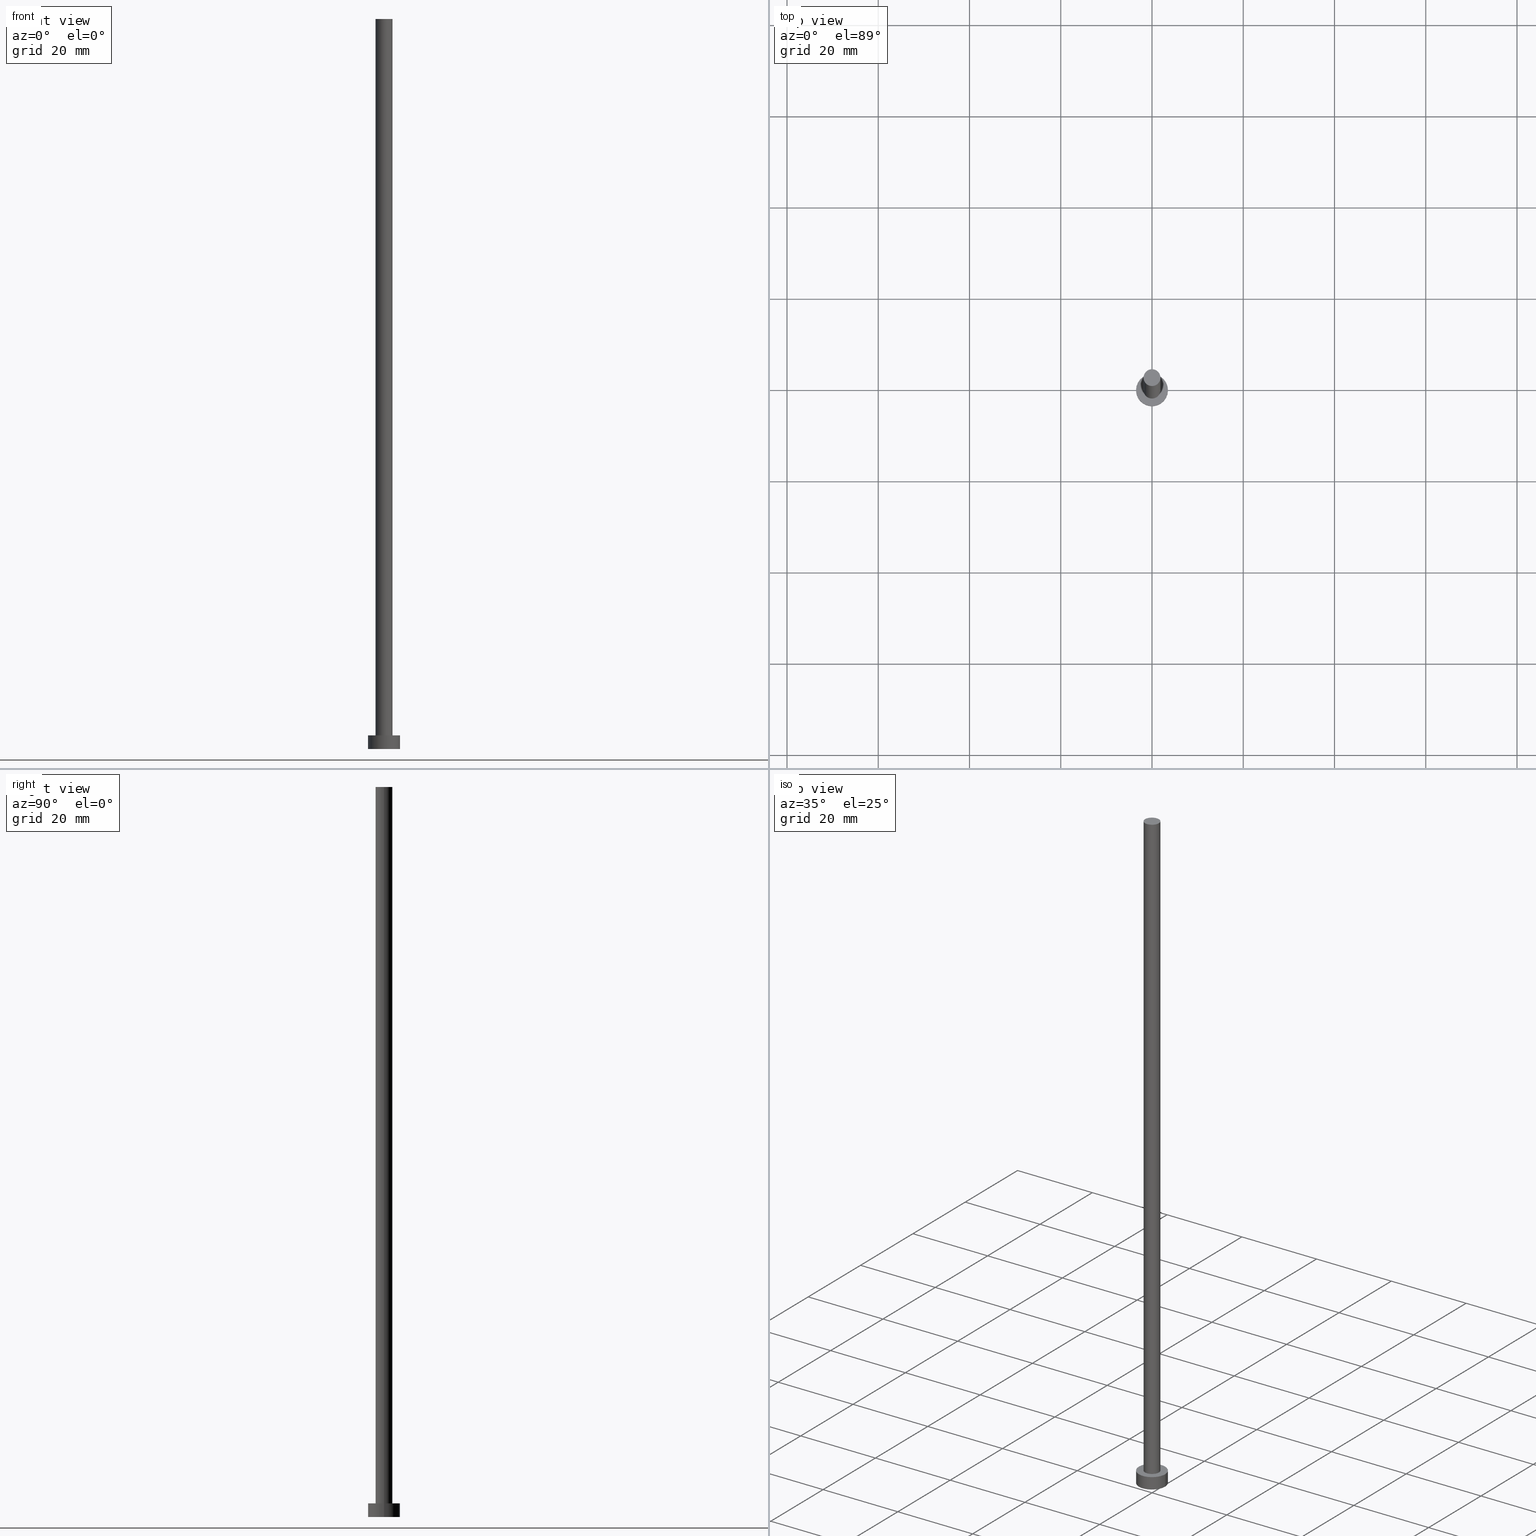
[diagram: canonical four-view strip — front | top / right | iso, engineering-drawing reading convention]
A machine part, canonical four-view strip (front | top / right | iso — engineering-drawing reading convention). The complete STEP part file that produces these views, byte-faithful:
ISO-10303-21;
HEADER;
FILE_DESCRIPTION (( 'STEP AP203' ),
    '1' );
FILE_NAME ('f652.STEP',
    '2026-02-11T15:51:10',
    ( '' ),
    ( '' ),
    'SwSTEP 2.0',
    'SolidWorks 2019',
    '' );
FILE_SCHEMA (( 'CONFIG_CONTROL_DESIGN' ));
ENDSEC;

DATA;
#1 = VECTOR ( 'NONE', #9, 1000.000000000000000 ) ;
#2 = EDGE_CURVE ( 'NONE', #203, #167, #132, .T. ) ;
#3 = APPROVAL_STATUS ( 'not_yet_approved' ) ;
#4 = DIRECTION ( 'NONE',  ( 0.000000000000000000, 0.000000000000000000, 1.000000000000000000 ) ) ;
#5 = CARTESIAN_POINT ( 'NONE',  ( 0.000000000000000000, 0.000000000000000000, 3.000000000000000000 ) ) ;
#6 = PERSON_AND_ORGANIZATION_ROLE ( 'design_supplier' ) ;
#7 = CARTESIAN_POINT ( 'NONE',  ( 3.500000000000000444, 4.286263797015737088E-16, 0.000000000000000000 ) ) ;
#8 = AXIS2_PLACEMENT_3D ( 'NONE', #175, #105, #83 ) ;
#9 = DIRECTION ( 'NONE',  ( -0.000000000000000000, -0.000000000000000000, -1.000000000000000000 ) ) ;
#10 = UNCERTAINTY_MEASURE_WITH_UNIT (LENGTH_MEASURE( 1.000000000000000082E-05 ), #128, 'distance_accuracy_value', 'NONE');
#11 = APPROVAL_DATE_TIME ( #146, #33 ) ;
#12 = LINE ( 'NONE', #159, #1 ) ;
#13 = DIRECTION ( 'NONE',  ( 0.000000000000000000, 0.000000000000000000, 1.000000000000000000 ) ) ;
#14 = CC_DESIGN_APPROVAL ( #131, ( #190 ) ) ;
#15 = ORIENTED_EDGE ( 'NONE', *, *, #118, .T. ) ;
#16 = CC_DESIGN_PERSON_AND_ORGANIZATION_ASSIGNMENT ( #205, #234, ( #212 ) ) ;
#17 = ORIENTED_EDGE ( 'NONE', *, *, #19, .F. ) ;
#18 = CARTESIAN_POINT ( 'NONE',  ( 0.000000000000000000, 0.000000000000000000, 3.000000000000000000 ) ) ;
#19 = EDGE_CURVE ( 'NONE', #48, #199, #144, .T. ) ;
#20 = LOCAL_TIME ( 16, 51, 10.00000000000000000, #47 ) ;
#21 = VERTEX_POINT ( 'NONE', #160 ) ;
#22 = DIRECTION ( 'NONE',  ( 0.000000000000000000, 0.000000000000000000, 1.000000000000000000 ) ) ;
#23 = DIRECTION ( 'NONE',  ( 1.000000000000000000, 0.000000000000000000, 0.000000000000000000 ) ) ;
#24 = DIRECTION ( 'NONE',  ( 0.000000000000000000, 0.000000000000000000, 1.000000000000000000 ) ) ;
#25 = DIRECTION ( 'NONE',  ( 1.000000000000000000, 0.000000000000000000, 0.000000000000000000 ) ) ;
#26 = MANIFOLD_SOLID_BREP ( 'P�idat vysunut�m3', #113 ) ;
#27 = CALENDAR_DATE ( 2026, 11, 2 ) ;
#28 = COORDINATED_UNIVERSAL_TIME_OFFSET ( 1, 0, .AHEAD. ) ;
#29 = CARTESIAN_POINT ( 'NONE',  ( 3.500000000000000444, 4.286263797015737088E-16, 3.000000000000000000 ) ) ;
#30 = CARTESIAN_POINT ( 'NONE',  ( 0.000000000000000000, 0.000000000000000000, 0.000000000000000000 ) ) ;
#31 =( NAMED_UNIT ( * ) PLANE_ANGLE_UNIT ( ) SI_UNIT ( $, .RADIAN. ) );
#32 = PERSON_AND_ORGANIZATION ( #169, #173 ) ;
#33 = APPROVAL ( #3, 'NEUR�EN�' ) ;
#34 = ORIENTED_EDGE ( 'NONE', *, *, #19, .T. ) ;
#35 = LOCAL_TIME ( 16, 51, 10.00000000000000000, #252 ) ;
#36 = ORIENTED_EDGE ( 'NONE', *, *, #88, .F. ) ;
#37 = FACE_OUTER_BOUND ( 'NONE', #91, .T. ) ;
#38 = CARTESIAN_POINT ( 'NONE',  ( -3.500000000000000444, 0.000000000000000000, 0.000000000000000000 ) ) ;
#39 = CIRCLE ( 'NONE', #183, 1.850000000000000089 ) ;
#40 = APPROVAL_PERSON_ORGANIZATION ( #171, #98, #109 ) ;
#41 = ORIENTED_EDGE ( 'NONE', *, *, #2, .T. ) ;
#42 = ORIENTED_EDGE ( 'NONE', *, *, #139, .F. ) ;
#43 = FACE_OUTER_BOUND ( 'NONE', #124, .T. ) ;
#44 = CIRCLE ( 'NONE', #243, 3.500000000000000444 ) ;
#45 = DESIGN_CONTEXT ( 'detailed design', #156, 'design' ) ;
#46 = PERSON_AND_ORGANIZATION_ROLE ( 'creator' ) ;
#47 = COORDINATED_UNIVERSAL_TIME_OFFSET ( 1, 0, .AHEAD. ) ;
#48 = VERTEX_POINT ( 'NONE', #242 ) ;
#49 = DIRECTION ( 'NONE',  ( -1.000000000000000000, 0.000000000000000000, 0.000000000000000000 ) ) ;
#50 = CARTESIAN_POINT ( 'NONE',  ( 0.000000000000000000, 0.000000000000000000, 3.000000000000000000 ) ) ;
#51 =( GEOMETRIC_REPRESENTATION_CONTEXT ( 3 ) GLOBAL_UNCERTAINTY_ASSIGNED_CONTEXT ( ( #10 ) ) GLOBAL_UNIT_ASSIGNED_CONTEXT ( ( #128, #31, #233 ) ) REPRESENTATION_CONTEXT ( 'NONE', 'WORKASPACE' ) );
#52 = DIRECTION ( 'NONE',  ( -0.000000000000000000, -0.000000000000000000, -1.000000000000000000 ) ) ;
#53 = ORIENTED_EDGE ( 'NONE', *, *, #176, .F. ) ;
#54 = AXIS2_PLACEMENT_3D ( 'NONE', #103, #4, #100 ) ;
#55 = EDGE_LOOP ( 'NONE', ( #216, #79 ) ) ;
#56 = DIRECTION ( 'NONE',  ( 1.000000000000000000, 0.000000000000000000, 0.000000000000000000 ) ) ;
#57 = ORIENTED_EDGE ( 'NONE', *, *, #157, .F. ) ;
#58 = CARTESIAN_POINT ( 'NONE',  ( 3.500000000000000444, 4.286263797015737088E-16, 3.000000000000000000 ) ) ;
#59 = AXIS2_PLACEMENT_3D ( 'NONE', #238, #155, #80 ) ;
#60 = CARTESIAN_POINT ( 'NONE',  ( 0.000000000000000000, 0.000000000000000000, 3.000000000000000000 ) ) ;
#61 = PERSON_AND_ORGANIZATION ( #169, #173 ) ;
#62 = CC_DESIGN_APPROVAL ( #98, ( #78 ) ) ;
#63 = DIRECTION ( 'NONE',  ( 0.000000000000000000, 0.000000000000000000, 1.000000000000000000 ) ) ;
#64 = PERSON_AND_ORGANIZATION ( #169, #173 ) ;
#65 = CARTESIAN_POINT ( 'NONE',  ( -1.850000000000000089, 0.000000000000000000, 160.0000000000000000 ) ) ;
#66 = APPLICATION_PROTOCOL_DEFINITION ( 'international standard', 'config_control_design', 1994, #156 ) ;
#67 = CIRCLE ( 'NONE', #152, 3.500000000000000444 ) ;
#68 = AXIS2_PLACEMENT_3D ( 'NONE', #60, #22, #255 ) ;
#69 = LOCAL_TIME ( 16, 51, 10.00000000000000000, #164 ) ;
#70 = ORIENTED_EDGE ( 'NONE', *, *, #176, .T. ) ;
#71 = APPROVAL_PERSON_ORGANIZATION ( #247, #33, #120 ) ;
#72 = FACE_BOUND ( 'NONE', #143, .T. ) ;
#73 = SHAPE_DEFINITION_REPRESENTATION ( #195, #125 ) ;
#74 = CARTESIAN_POINT ( 'NONE',  ( -3.500000000000000444, 0.000000000000000000, 3.000000000000000000 ) ) ;
#75 = DIRECTION ( 'NONE',  ( -0.000000000000000000, -0.000000000000000000, -1.000000000000000000 ) ) ;
#76 = CARTESIAN_POINT ( 'NONE',  ( 0.000000000000000000, 0.000000000000000000, 0.000000000000000000 ) ) ;
#77 = CYLINDRICAL_SURFACE ( 'NONE', #59, 1.850000000000000089 ) ;
#78 = SECURITY_CLASSIFICATION ( '', '', #239 ) ;
#79 = ORIENTED_EDGE ( 'NONE', *, *, #118, .F. ) ;
#80 = DIRECTION ( 'NONE',  ( -1.000000000000000000, 0.000000000000000000, 0.000000000000000000 ) ) ;
#81 = ORIENTED_EDGE ( 'NONE', *, *, #250, .F. ) ;
#82 = FACE_OUTER_BOUND ( 'NONE', #178, .T. ) ;
#83 = DIRECTION ( 'NONE',  ( 1.000000000000000000, 0.000000000000000000, 0.000000000000000000 ) ) ;
#84 = DIRECTION ( 'NONE',  ( 1.000000000000000000, 0.000000000000000000, 0.000000000000000000 ) ) ;
#85 = EDGE_CURVE ( 'NONE', #198, #89, #44, .T. ) ;
#86 = DIRECTION ( 'NONE',  ( 1.000000000000000000, 0.000000000000000000, -0.000000000000000000 ) ) ;
#87 = CC_DESIGN_PERSON_AND_ORGANIZATION_ASSIGNMENT ( #187, #227, ( #191 ) ) ;
#88 = EDGE_CURVE ( 'NONE', #203, #89, #228, .T. ) ;
#89 = VERTEX_POINT ( 'NONE', #7 ) ;
#90 = VECTOR ( 'NONE', #181, 1000.000000000000000 ) ;
#91 = EDGE_LOOP ( 'NONE', ( #36, #230, #116, #224 ) ) ;
#92 = ADVANCED_FACE ( 'NONE', ( #248 ), #108, .T. ) ;
#93 = CALENDAR_DATE ( 2026, 11, 2 ) ;
#94 = ORIENTED_EDGE ( 'NONE', *, *, #192, .T. ) ;
#95 = AXIS2_PLACEMENT_3D ( 'NONE', #189, #13, #184 ) ;
#96 = APPLICATION_CONTEXT ( 'configuration controlled 3d designs of mechanical parts and assemblies' ) ;
#97 = PERSON_AND_ORGANIZATION_ROLE ( 'classification_officer' ) ;
#98 = APPROVAL ( #133, 'NEUR�EN�' ) ;
#99 = CC_DESIGN_PERSON_AND_ORGANIZATION_ASSIGNMENT ( #32, #97, ( #78 ) ) ;
#100 = DIRECTION ( 'NONE',  ( 1.000000000000000000, 0.000000000000000000, 0.000000000000000000 ) ) ;
#101 = FACE_OUTER_BOUND ( 'NONE', #136, .T. ) ;
#102 = CIRCLE ( 'NONE', #150, 3.500000000000000444 ) ;
#103 = CARTESIAN_POINT ( 'NONE',  ( 0.000000000000000000, 0.000000000000000000, 3.000000000000000000 ) ) ;
#104 = DIRECTION ( 'NONE',  ( 0.000000000000000000, 0.000000000000000000, 1.000000000000000000 ) ) ;
#105 = DIRECTION ( 'NONE',  ( 0.000000000000000000, 0.000000000000000000, 1.000000000000000000 ) ) ;
#106 = DIRECTION ( 'NONE',  ( 1.000000000000000000, 0.000000000000000000, 0.000000000000000000 ) ) ;
#107 = DIRECTION ( 'NONE',  ( 0.000000000000000000, 0.000000000000000000, 1.000000000000000000 ) ) ;
#108 = CYLINDRICAL_SURFACE ( 'NONE', #110, 1.850000000000000089 ) ;
#109 = APPROVAL_ROLE ( '' ) ;
#110 = AXIS2_PLACEMENT_3D ( 'NONE', #153, #52, #179 ) ;
#111 = ORIENTED_EDGE ( 'NONE', *, *, #139, .T. ) ;
#112 = ADVANCED_FACE ( 'NONE', ( #82 ), #244, .T. ) ;
#113 = CLOSED_SHELL ( 'NONE', ( #92, #112, #165, #207, #149, #208, #236 ) ) ;
#114 = CIRCLE ( 'NONE', #197, 1.850000000000000089 ) ;
#115 = EDGE_LOOP ( 'NONE', ( #42, #53, #130, #194 ) ) ;
#116 = ORIENTED_EDGE ( 'NONE', *, *, #188, .T. ) ;
#117 = LINE ( 'NONE', #237, #127 ) ;
#118 = EDGE_CURVE ( 'NONE', #89, #198, #67, .T. ) ;
#119 = PLANE ( 'NONE',  #185 ) ;
#120 = APPROVAL_ROLE ( '' ) ;
#121 = DIRECTION ( 'NONE',  ( 1.000000000000000000, 0.000000000000000000, -0.000000000000000000 ) ) ;
#122 = MECHANICAL_CONTEXT ( 'NONE', #96, 'mechanical' ) ;
#123 = EDGE_CURVE ( 'NONE', #21, #215, #39, .T. ) ;
#124 = EDGE_LOOP ( 'NONE', ( #70, #134 ) ) ;
#125 = ADVANCED_BREP_SHAPE_REPRESENTATION ( 'f652', ( #26, #95 ), #51 ) ;
#126 = CC_DESIGN_PERSON_AND_ORGANIZATION_ASSIGNMENT ( #202, #6, ( #191 ) ) ;
#127 = VECTOR ( 'NONE', #251, 1000.000000000000000 ) ;
#128 =( LENGTH_UNIT ( ) NAMED_UNIT ( * ) SI_UNIT ( .MILLI., .METRE. ) );
#129 = COORDINATED_UNIVERSAL_TIME_OFFSET ( 1, 0, .AHEAD. ) ;
#130 = ORIENTED_EDGE ( 'NONE', *, *, #157, .T. ) ;
#131 = APPROVAL ( #206, 'NEUR�EN�' ) ;
#132 = CIRCLE ( 'NONE', #54, 3.500000000000000444 ) ;
#133 = APPROVAL_STATUS ( 'not_yet_approved' ) ;
#134 = ORIENTED_EDGE ( 'NONE', *, *, #123, .T. ) ;
#135 = DIRECTION ( 'NONE',  ( -1.000000000000000000, 0.000000000000000000, 0.000000000000000000 ) ) ;
#136 = EDGE_LOOP ( 'NONE', ( #94, #41 ) ) ;
#137 = CIRCLE ( 'NONE', #214, 1.850000000000000089 ) ;
#138 = CYLINDRICAL_SURFACE ( 'NONE', #213, 3.500000000000000444 ) ;
#139 = EDGE_CURVE ( 'NONE', #21, #48, #12, .T. ) ;
#140 = ORIENTED_EDGE ( 'NONE', *, *, #123, .F. ) ;
#141 = PLANE ( 'NONE',  #68 ) ;
#142 = CC_DESIGN_DATE_AND_TIME_ASSIGNMENT ( #232, #225, ( #190 ) ) ;
#143 = EDGE_LOOP ( 'NONE', ( #81, #17 ) ) ;
#144 = CIRCLE ( 'NONE', #8, 1.850000000000000089 ) ;
#145 = APPROVAL_PERSON_ORGANIZATION ( #61, #131, #186 ) ;
#146 = DATE_AND_TIME ( #27, #161 ) ;
#147 = DATE_AND_TIME ( #241, #69 ) ;
#148 = DIRECTION ( 'NONE',  ( 0.000000000000000000, 0.000000000000000000, 1.000000000000000000 ) ) ;
#149 = ADVANCED_FACE ( 'NONE', ( #240 ), #246, .F. ) ;
#150 = AXIS2_PLACEMENT_3D ( 'NONE', #254, #24, #56 ) ;
#151 = CALENDAR_DATE ( 2026, 11, 2 ) ;
#152 = AXIS2_PLACEMENT_3D ( 'NONE', #30, #226, #106 ) ;
#153 = CARTESIAN_POINT ( 'NONE',  ( 0.000000000000000000, 0.000000000000000000, 160.0000000000000000 ) ) ;
#154 = EDGE_LOOP ( 'NONE', ( #140, #111, #34, #57 ) ) ;
#155 = DIRECTION ( 'NONE',  ( -0.000000000000000000, -0.000000000000000000, -1.000000000000000000 ) ) ;
#156 = APPLICATION_CONTEXT ( 'configuration controlled 3d designs of mechanical parts and assemblies' ) ;
#157 = EDGE_CURVE ( 'NONE', #215, #199, #231, .T. ) ;
#158 = CARTESIAN_POINT ( 'NONE',  ( -1.850000000000000089, 0.000000000000000000, 160.0000000000000000 ) ) ;
#159 = CARTESIAN_POINT ( 'NONE',  ( 1.850000000000000089, 2.265596578422603100E-16, 160.0000000000000000 ) ) ;
#160 = CARTESIAN_POINT ( 'NONE',  ( 1.850000000000000089, 2.265596578422603100E-16, 160.0000000000000000 ) ) ;
#161 = LOCAL_TIME ( 16, 51, 10.00000000000000000, #28 ) ;
#162 = CARTESIAN_POINT ( 'NONE',  ( 0.000000000000000000, 0.000000000000000000, 0.000000000000000000 ) ) ;
#163 = APPLICATION_PROTOCOL_DEFINITION ( 'international standard', 'config_control_design', 1994, #96 ) ;
#164 = COORDINATED_UNIVERSAL_TIME_OFFSET ( 1, 0, .AHEAD. ) ;
#165 = ADVANCED_FACE ( 'NONE', ( #37 ), #138, .T. ) ;
#166 = DATE_TIME_ROLE ( 'classification_date' ) ;
#167 = VERTEX_POINT ( 'NONE', #74 ) ;
#168 = CC_DESIGN_DATE_AND_TIME_ASSIGNMENT ( #196, #166, ( #78 ) ) ;
#169 = PERSON ( 'NEUR�EN�', 'NEUR�EN�', 'NEUR�EN�', ('NEUR�EN�'), ('NEUR�EN�'), ('NEUR�EN�') ) ;
#170 = ORIENTED_EDGE ( 'NONE', *, *, #88, .T. ) ;
#171 = PERSON_AND_ORGANIZATION ( #169, #173 ) ;
#172 = ORIENTED_EDGE ( 'NONE', *, *, #2, .F. ) ;
#173 = ORGANIZATION ( 'NEUR�EN�', 'NEUR�EN�', '' ) ;
#174 = DIRECTION ( 'NONE',  ( -0.000000000000000000, -0.000000000000000000, -1.000000000000000000 ) ) ;
#175 = CARTESIAN_POINT ( 'NONE',  ( 0.000000000000000000, 0.000000000000000000, 3.000000000000000000 ) ) ;
#176 = EDGE_CURVE ( 'NONE', #215, #21, #137, .T. ) ;
#177 = LOCAL_TIME ( 16, 51, 10.00000000000000000, #129 ) ;
#178 = EDGE_LOOP ( 'NONE', ( #172, #170, #15, #253 ) ) ;
#179 = DIRECTION ( 'NONE',  ( -1.000000000000000000, 0.000000000000000000, 0.000000000000000000 ) ) ;
#180 = CALENDAR_DATE ( 2026, 11, 2 ) ;
#181 = DIRECTION ( 'NONE',  ( -0.000000000000000000, -0.000000000000000000, -1.000000000000000000 ) ) ;
#182 = CARTESIAN_POINT ( 'NONE',  ( 0.000000000000000000, 0.000000000000000000, 160.0000000000000000 ) ) ;
#183 = AXIS2_PLACEMENT_3D ( 'NONE', #182, #104, #84 ) ;
#184 = DIRECTION ( 'NONE',  ( 1.000000000000000000, 0.000000000000000000, 0.000000000000000000 ) ) ;
#185 = AXIS2_PLACEMENT_3D ( 'NONE', #201, #217, #86 ) ;
#186 = APPROVAL_ROLE ( '' ) ;
#187 = PERSON_AND_ORGANIZATION ( #169, #173 ) ;
#188 = EDGE_CURVE ( 'NONE', #167, #198, #117, .T. ) ;
#189 = CARTESIAN_POINT ( 'NONE',  ( 0.000000000000000000, 0.000000000000000000, 0.000000000000000000 ) ) ;
#190 = PRODUCT_DEFINITION ( 'NEZN�M�', '', #191, #45 ) ;
#191 = PRODUCT_DEFINITION_FORMATION_WITH_SPECIFIED_SOURCE ( 'LIBOVOLN�', '', #212, .NOT_KNOWN. ) ;
#192 = EDGE_CURVE ( 'NONE', #167, #203, #102, .T. ) ;
#193 = DATE_AND_TIME ( #93, #177 ) ;
#194 = ORIENTED_EDGE ( 'NONE', *, *, #250, .T. ) ;
#195 = PRODUCT_DEFINITION_SHAPE ( 'NONE', 'NONE',  #190 ) ;
#196 = DATE_AND_TIME ( #151, #35 ) ;
#197 = AXIS2_PLACEMENT_3D ( 'NONE', #50, #107, #245 ) ;
#198 = VERTEX_POINT ( 'NONE', #38 ) ;
#199 = VERTEX_POINT ( 'NONE', #235 ) ;
#200 = FACE_OUTER_BOUND ( 'NONE', #115, .T. ) ;
#201 = CARTESIAN_POINT ( 'NONE',  ( 0.000000000000000000, 0.000000000000000000, 160.0000000000000000 ) ) ;
#202 = PERSON_AND_ORGANIZATION ( #169, #173 ) ;
#203 = VERTEX_POINT ( 'NONE', #58 ) ;
#204 = DIRECTION ( 'NONE',  ( -0.000000000000000000, -0.000000000000000000, -1.000000000000000000 ) ) ;
#205 = PERSON_AND_ORGANIZATION ( #169, #173 ) ;
#206 = APPROVAL_STATUS ( 'not_yet_approved' ) ;
#207 = ADVANCED_FACE ( 'NONE', ( #72, #101 ), #141, .T. ) ;
#208 = ADVANCED_FACE ( 'NONE', ( #200 ), #77, .T. ) ;
#209 = AXIS2_PLACEMENT_3D ( 'NONE', #5, #204, #49 ) ;
#210 = CC_DESIGN_SECURITY_CLASSIFICATION ( #78, ( #191 ) ) ;
#211 = APPROVAL_DATE_TIME ( #193, #98 ) ;
#212 = PRODUCT ( 'f652', 'f652', '', ( #122 ) ) ;
#213 = AXIS2_PLACEMENT_3D ( 'NONE', #18, #75, #135 ) ;
#214 = AXIS2_PLACEMENT_3D ( 'NONE', #218, #222, #25 ) ;
#215 = VERTEX_POINT ( 'NONE', #158 ) ;
#216 = ORIENTED_EDGE ( 'NONE', *, *, #85, .F. ) ;
#217 = DIRECTION ( 'NONE',  ( 0.000000000000000000, 0.000000000000000000, 1.000000000000000000 ) ) ;
#218 = CARTESIAN_POINT ( 'NONE',  ( 0.000000000000000000, 0.000000000000000000, 160.0000000000000000 ) ) ;
#219 = PRODUCT_RELATED_PRODUCT_CATEGORY ( 'detail', '', ( #212 ) ) ;
#220 = AXIS2_PLACEMENT_3D ( 'NONE', #162, #148, #121 ) ;
#221 = CC_DESIGN_APPROVAL ( #33, ( #191 ) ) ;
#222 = DIRECTION ( 'NONE',  ( 0.000000000000000000, 0.000000000000000000, 1.000000000000000000 ) ) ;
#223 = CC_DESIGN_PERSON_AND_ORGANIZATION_ASSIGNMENT ( #64, #46, ( #190 ) ) ;
#224 = ORIENTED_EDGE ( 'NONE', *, *, #85, .T. ) ;
#225 = DATE_TIME_ROLE ( 'creation_date' ) ;
#226 = DIRECTION ( 'NONE',  ( 0.000000000000000000, 0.000000000000000000, 1.000000000000000000 ) ) ;
#227 = PERSON_AND_ORGANIZATION_ROLE ( 'creator' ) ;
#228 = LINE ( 'NONE', #29, #90 ) ;
#229 = APPROVAL_DATE_TIME ( #147, #131 ) ;
#230 = ORIENTED_EDGE ( 'NONE', *, *, #192, .F. ) ;
#231 = LINE ( 'NONE', #65, #249 ) ;
#232 = DATE_AND_TIME ( #180, #20 ) ;
#233 =( NAMED_UNIT ( * ) SI_UNIT ( $, .STERADIAN. ) SOLID_ANGLE_UNIT ( ) );
#234 = PERSON_AND_ORGANIZATION_ROLE ( 'design_owner' ) ;
#235 = CARTESIAN_POINT ( 'NONE',  ( -1.850000000000000089, 0.000000000000000000, 3.000000000000000000 ) ) ;
#236 = ADVANCED_FACE ( 'NONE', ( #43 ), #119, .T. ) ;
#237 = CARTESIAN_POINT ( 'NONE',  ( -3.500000000000000444, 0.000000000000000000, 3.000000000000000000 ) ) ;
#238 = CARTESIAN_POINT ( 'NONE',  ( 0.000000000000000000, 0.000000000000000000, 160.0000000000000000 ) ) ;
#239 = SECURITY_CLASSIFICATION_LEVEL ( 'unclassified' ) ;
#240 = FACE_OUTER_BOUND ( 'NONE', #55, .T. ) ;
#241 = CALENDAR_DATE ( 2026, 11, 2 ) ;
#242 = CARTESIAN_POINT ( 'NONE',  ( 1.850000000000000089, 2.265596578422603100E-16, 3.000000000000000000 ) ) ;
#243 = AXIS2_PLACEMENT_3D ( 'NONE', #76, #63, #23 ) ;
#244 = CYLINDRICAL_SURFACE ( 'NONE', #209, 3.500000000000000444 ) ;
#245 = DIRECTION ( 'NONE',  ( 1.000000000000000000, 0.000000000000000000, 0.000000000000000000 ) ) ;
#246 = PLANE ( 'NONE',  #220 ) ;
#247 = PERSON_AND_ORGANIZATION ( #169, #173 ) ;
#248 = FACE_OUTER_BOUND ( 'NONE', #154, .T. ) ;
#249 = VECTOR ( 'NONE', #174, 1000.000000000000000 ) ;
#250 = EDGE_CURVE ( 'NONE', #199, #48, #114, .T. ) ;
#251 = DIRECTION ( 'NONE',  ( -0.000000000000000000, -0.000000000000000000, -1.000000000000000000 ) ) ;
#252 = COORDINATED_UNIVERSAL_TIME_OFFSET ( 1, 0, .AHEAD. ) ;
#253 = ORIENTED_EDGE ( 'NONE', *, *, #188, .F. ) ;
#254 = CARTESIAN_POINT ( 'NONE',  ( 0.000000000000000000, 0.000000000000000000, 3.000000000000000000 ) ) ;
#255 = DIRECTION ( 'NONE',  ( 1.000000000000000000, 0.000000000000000000, -0.000000000000000000 ) ) ;
ENDSEC;
END-ISO-10303-21;
